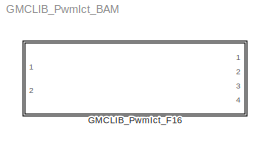
MODEL GMCLIB_PwmIct_BAM
KIND model
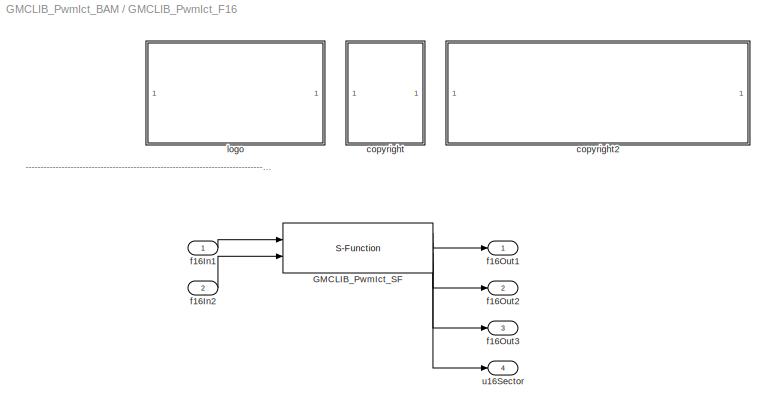
BLOCK [SubSystem] GMCLIB_PwmIct_F16
  Ports = [2, 4]
  RequestExecContextInheritance = off
  SID = 1
BLOCK [S-Function] GMCLIB_PwmIct_F16/GMCLIB_PwmIct_SF
  EnableBusSupport = off
  FunctionName = GMCLIB_PwmIct_SF_F16
  Ports = [2, 4]
  SID = 4
BLOCK [SubSystem] GMCLIB_PwmIct_F16/<copyright redacted>
  Ports = []
  RequestExecContextInheritance = off
  SID = 15
BLOCK [SubSystem] GMCLIB_PwmIct_F16/copyright2
  Ports = []
  RequestExecContextInheritance = off
  SID = 18
BLOCK [Inport] GMCLIB_PwmIct_F16/f16In1
  IconDisplay = Port number
  SID = 5
BLOCK [Inport] GMCLIB_PwmIct_F16/f16In2
  IconDisplay = Port number
  Port = 2
  SID = 6
BLOCK [Outport] GMCLIB_PwmIct_F16/f16Out1
  IconDisplay = Port number
  SID = 7
BLOCK [Outport] GMCLIB_PwmIct_F16/f16Out2
  IconDisplay = Port number
  Port = 2
  SID = 8
BLOCK [Outport] GMCLIB_PwmIct_F16/f16Out3
  IconDisplay = Port number
  Port = 3
  SID = 9
BLOCK [SubSystem] GMCLIB_PwmIct_F16/logo
  Ports = []
  RequestExecContextInheritance = off
  SID = 11
BLOCK [Outport] GMCLIB_PwmIct_F16/u16Sector
  IconDisplay = Port number
  Port = 4
  SID = 10
ANNOTATION GMCLIB_PwmIct_F16: ---------------------------------------------------------------------------------------------------------------------------------------------------------------------------------------------------
LINE GMCLIB_PwmIct_F16/GMCLIB_PwmIct_SF:1 -> GMCLIB_PwmIct_F16/f16Out1:1
LINE GMCLIB_PwmIct_F16/GMCLIB_PwmIct_SF:2 -> GMCLIB_PwmIct_F16/f16Out2:1
LINE GMCLIB_PwmIct_F16/GMCLIB_PwmIct_SF:3 -> GMCLIB_PwmIct_F16/f16Out3:1
LINE GMCLIB_PwmIct_F16/GMCLIB_PwmIct_SF:4 -> GMCLIB_PwmIct_F16/u16Sector:1
LINE GMCLIB_PwmIct_F16/f16In1:1 -> GMCLIB_PwmIct_F16/GMCLIB_PwmIct_SF:1
LINE GMCLIB_PwmIct_F16/f16In2:1 -> GMCLIB_PwmIct_F16/GMCLIB_PwmIct_SF:2
